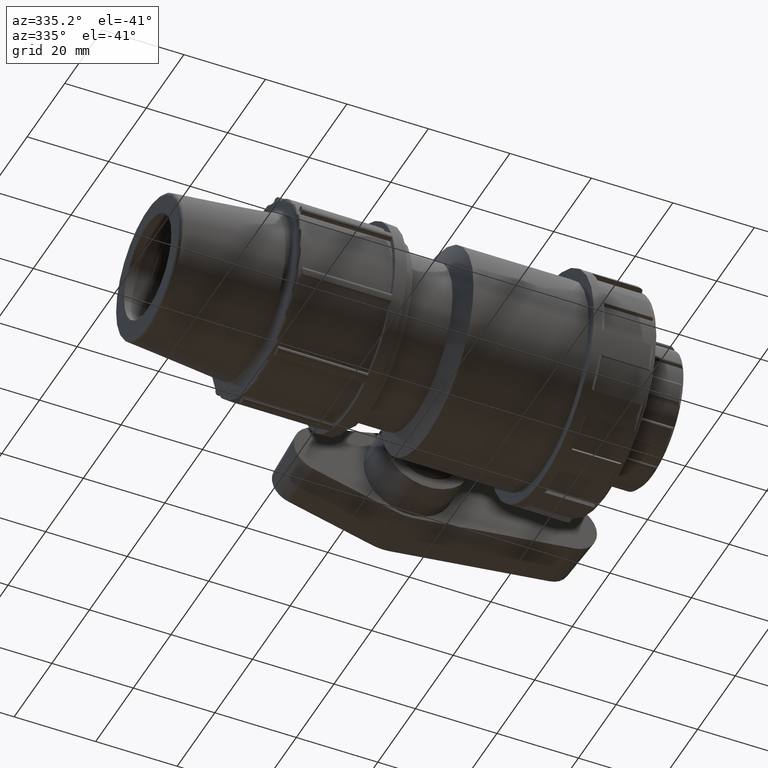
[diagram: clean part render]
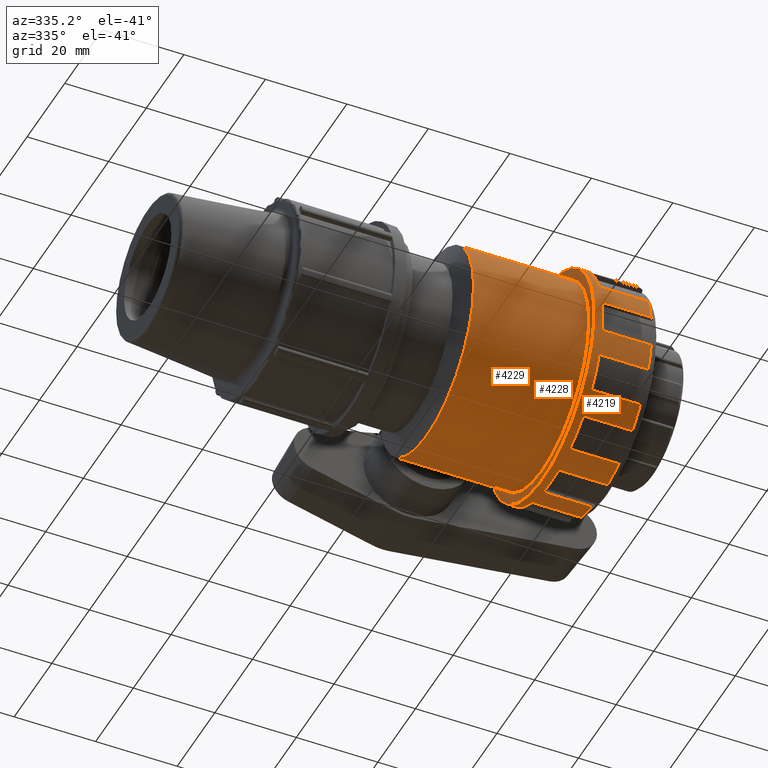
[diagram: same view with one multi-face feature highlighted, each face labeled with its STEP entity id]
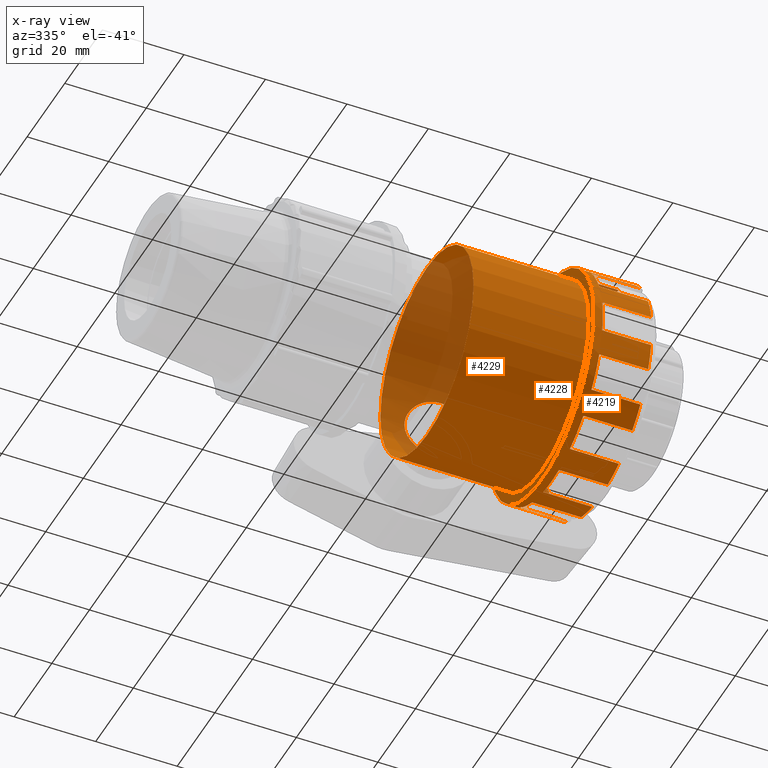
[diagram: x-ray of the same camera — body ghosted, the whole feature saturated]
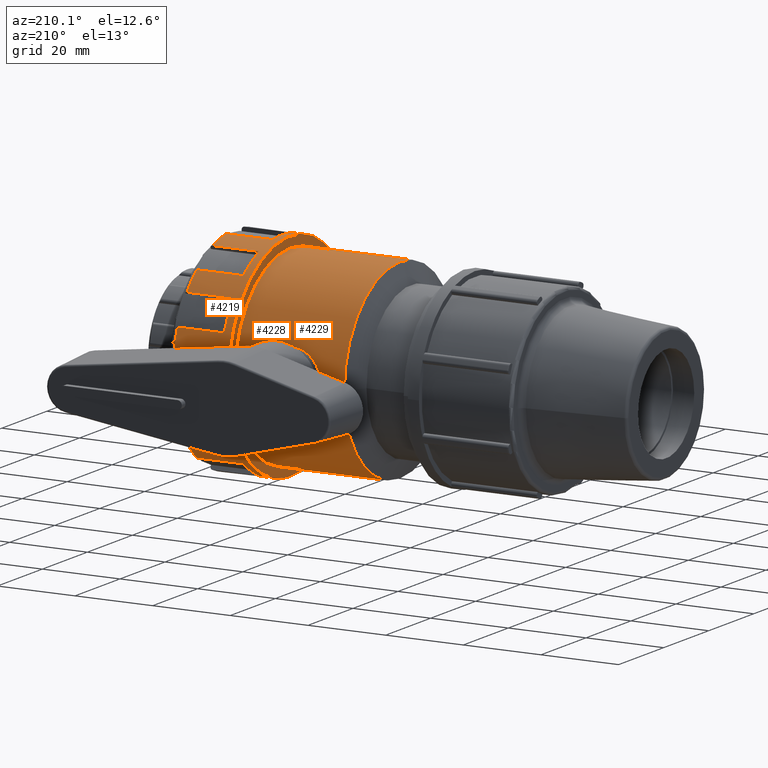
[diagram: same view with one multi-face feature highlighted, each face labeled with its STEP entity id]
A machine part, auxiliary view. The highlighted faces form ONE feature: a stepped (counterbored) hole: 2 coaxial cylindrical walls of radii 24.75 -> 27.5 mm joined by 1 annular planar shoulder face(s). The faces share edges in the B-rep.
The next image is the same camera in x-ray: the body ghosted and the whole hole feature saturated, so the bore chain is visible through the body.
A second angle (auxiliary view) of the same feature is appended — it is thin or edge-on in the first view.
Their STEP definitions:
[1] entity #4219 (Cylinder):
#90=FACE_BOUND('',#832,.T.);
#567=FACE_OUTER_BOUND('',#831,.T.);
#831=EDGE_LOOP('',(#3730,#3731,#3732,#3733,#3734,#3735,#3736,#3737,#3738,
#3739,#3740,#3741,#3742,#3743,#3744,#3745,#3746,#3747,#3748,#3749,#3750,
#3751,#3752,#3753,#3754,#3755,#3756,#3757,#3758,#3759,#3760,#3761,#3762,
#3763,#3764,#3765,#3766,#3767,#3768,#3769,#3770,#3771,#3772,#3773,#3774,
#3775,#3776,#3777));
#832=EDGE_LOOP('',(#3778));
#1042=LINE('',#8066,#1286);
#1043=LINE('',#8080,#1287);
#1048=LINE('',#8100,#1292);
#1049=LINE('',#8114,#1293);
#1054=LINE('',#8134,#1298);
#1055=LINE('',#8148,#1299);
#1060=LINE('',#8168,#1304);
#1061=LINE('',#8182,#1305);
#1066=LINE('',#8202,#1310);
#1067=LINE('',#8216,#1311);
#1072=LINE('',#8236,#1316);
#1073=LINE('',#8250,#1317);
#1078=LINE('',#8270,#1322);
#1079=LINE('',#8284,#1323);
#1084=LINE('',#8304,#1328);
#1085=LINE('',#8318,#1329);
#1090=LINE('',#8338,#1334);
#1091=LINE('',#8352,#1335);
#1096=LINE('',#8372,#1340);
#1097=LINE('',#8386,#1341);
#1102=LINE('',#8406,#1346);
#1103=LINE('',#8420,#1347);
#1108=LINE('',#8514,#1352);
#1109=LINE('',#8517,#1353);
#1286=VECTOR('',#5672,12.);
#1287=VECTOR('',#5675,12.);
#1292=VECTOR('',#5682,12.);
#1293=VECTOR('',#5685,12.);
#1298=VECTOR('',#5692,12.);
#1299=VECTOR('',#5695,12.);
#1304=VECTOR('',#5702,12.);
#1305=VECTOR('',#5705,12.);
#1310=VECTOR('',#5712,12.);
#1311=VECTOR('',#5715,12.);
#1316=VECTOR('',#5722,12.);
#1317=VECTOR('',#5725,12.);
#1322=VECTOR('',#5732,12.);
#1323=VECTOR('',#5735,12.);
#1328=VECTOR('',#5742,12.);
#1329=VECTOR('',#5745,12.);
#1334=VECTOR('',#5752,12.);
#1335=VECTOR('',#5755,12.);
#1340=VECTOR('',#5762,12.);
#1341=VECTOR('',#5765,12.);
#1346=VECTOR('',#5772,12.);
#1347=VECTOR('',#5775,12.);
#1352=VECTOR('',#5902,12.);
#1353=VECTOR('',#5905,12.);
#1539=CIRCLE('',#4567,27.5);
#1542=CIRCLE('',#4572,27.5);
#1545=CIRCLE('',#4577,27.5);
#1548=CIRCLE('',#4582,27.5);
#1551=CIRCLE('',#4587,27.5);
#1554=CIRCLE('',#4592,27.5);
#1557=CIRCLE('',#4597,27.5);
#1560=CIRCLE('',#4602,27.5);
#1563=CIRCLE('',#4607,27.5);
#1566=CIRCLE('',#4612,27.5);
#1569=CIRCLE('',#4617,27.5);
#1595=CIRCLE('',#4679,27.5);
#1596=CIRCLE('',#4681,27.5);
#1597=CIRCLE('',#4683,27.5);
#1598=CIRCLE('',#4685,27.5);
#1599=CIRCLE('',#4687,27.5);
#1600=CIRCLE('',#4689,27.5);
#1601=CIRCLE('',#4691,27.5);
#1602=CIRCLE('',#4693,27.5);
#1603=CIRCLE('',#4695,27.5);
#1604=CIRCLE('',#4697,27.5);
#1605=CIRCLE('',#4699,27.5);
#1606=CIRCLE('',#4701,27.5);
#1607=CIRCLE('',#4703,27.5);
#1608=CIRCLE('',#4704,27.5);
#1879=VERTEX_POINT('',#7688);
#1882=VERTEX_POINT('',#7702);
#1885=VERTEX_POINT('',#7721);
#1888=VERTEX_POINT('',#7735);
#1891=VERTEX_POINT('',#7754);
#1894=VERTEX_POINT('',#7768);
#1897=VERTEX_POINT('',#7787);
#1900=VERTEX_POINT('',#7801);
#1903=VERTEX_POINT('',#7820);
#1906=VERTEX_POINT('',#7834);
#1909=VERTEX_POINT('',#7853);
#1912=VERTEX_POINT('',#7867);
#1915=VERTEX_POINT('',#7886);
#1918=VERTEX_POINT('',#7900);
#1921=VERTEX_POINT('',#7919);
#1924=VERTEX_POINT('',#7933);
#1927=VERTEX_POINT('',#7952);
#1930=VERTEX_POINT('',#7966);
#1933=VERTEX_POINT('',#7985);
#1936=VERTEX_POINT('',#7999);
#1939=VERTEX_POINT('',#8018);
#1942=VERTEX_POINT('',#8032);
#1946=VERTEX_POINT('',#8052);
#1948=VERTEX_POINT('',#8068);
#1952=VERTEX_POINT('',#8086);
#1954=VERTEX_POINT('',#8102);
#1958=VERTEX_POINT('',#8120);
#1960=VERTEX_POINT('',#8136);
#1964=VERTEX_POINT('',#8154);
#1966=VERTEX_POINT('',#8170);
#1970=VERTEX_POINT('',#8188);
#1972=VERTEX_POINT('',#8204);
#1976=VERTEX_POINT('',#8222);
#1978=VERTEX_POINT('',#8238);
#1982=VERTEX_POINT('',#8256);
#1984=VERTEX_POINT('',#8272);
#1988=VERTEX_POINT('',#8290);
#1990=VERTEX_POINT('',#8306);
#1994=VERTEX_POINT('',#8324);
#1996=VERTEX_POINT('',#8340);
#2000=VERTEX_POINT('',#8358);
#2002=VERTEX_POINT('',#8374);
#2006=VERTEX_POINT('',#8392);
#2008=VERTEX_POINT('',#8408);
#2015=VERTEX_POINT('',#8467);
#2016=VERTEX_POINT('',#8498);
#2017=VERTEX_POINT('',#8513);
#2018=VERTEX_POINT('',#8515);
#2019=VERTEX_POINT('',#8518);
#2437=EDGE_CURVE('',#1882,#1879,#1539,.T.);
#2444=EDGE_CURVE('',#1888,#1885,#1542,.T.);
#2451=EDGE_CURVE('',#1894,#1891,#1545,.T.);
#2458=EDGE_CURVE('',#1900,#1897,#1548,.T.);
#2465=EDGE_CURVE('',#1906,#1903,#1551,.T.);
#2472=EDGE_CURVE('',#1912,#1909,#1554,.T.);
#2479=EDGE_CURVE('',#1918,#1915,#1557,.T.);
#2486=EDGE_CURVE('',#1924,#1921,#1560,.T.);
#2493=EDGE_CURVE('',#1930,#1927,#1563,.T.);
#2500=EDGE_CURVE('',#1936,#1933,#1566,.T.);
#2507=EDGE_CURVE('',#1942,#1939,#1569,.T.);
#2514=EDGE_CURVE('',#1946,#1879,#1042,.T.);
#2516=EDGE_CURVE('',#1882,#1948,#1043,.T.);
#2522=EDGE_CURVE('',#1952,#1885,#1048,.T.);
#2524=EDGE_CURVE('',#1888,#1954,#1049,.T.);
#2530=EDGE_CURVE('',#1958,#1891,#1054,.T.);
#2532=EDGE_CURVE('',#1894,#1960,#1055,.T.);
#2538=EDGE_CURVE('',#1964,#1897,#1060,.T.);
#2540=EDGE_CURVE('',#1900,#1966,#1061,.T.);
#2546=EDGE_CURVE('',#1970,#1903,#1066,.T.);
#2548=EDGE_CURVE('',#1906,#1972,#1067,.T.);
#2554=EDGE_CURVE('',#1976,#1909,#1072,.T.);
#2556=EDGE_CURVE('',#1912,#1978,#1073,.T.);
#2562=EDGE_CURVE('',#1982,#1915,#1078,.T.);
#2564=EDGE_CURVE('',#1918,#1984,#1079,.T.);
#2570=EDGE_CURVE('',#1988,#1921,#1084,.T.);
#2572=EDGE_CURVE('',#1924,#1990,#1085,.T.);
#2578=EDGE_CURVE('',#1994,#1927,#1090,.T.);
#2580=EDGE_CURVE('',#1930,#1996,#1091,.T.);
#2586=EDGE_CURVE('',#2000,#1933,#1096,.T.);
#2588=EDGE_CURVE('',#1936,#2002,#1097,.T.);
#2594=EDGE_CURVE('',#2006,#1939,#1102,.T.);
#2596=EDGE_CURVE('',#1942,#2008,#1103,.T.);
#2625=EDGE_CURVE('',#2006,#2015,#1595,.T.);
#2627=EDGE_CURVE('',#2000,#2008,#1596,.T.);
#2628=EDGE_CURVE('',#1994,#2002,#1597,.T.);
#2629=EDGE_CURVE('',#1988,#1996,#1598,.T.);
#2630=EDGE_CURVE('',#1982,#1990,#1599,.T.);
#2631=EDGE_CURVE('',#1976,#1984,#1600,.T.);
#2632=EDGE_CURVE('',#1970,#1978,#1601,.T.);
#2633=EDGE_CURVE('',#1964,#1972,#1602,.T.);
#2634=EDGE_CURVE('',#1958,#1966,#1603,.T.);
#2635=EDGE_CURVE('',#1952,#1960,#1604,.T.);
#2637=EDGE_CURVE('',#2016,#1948,#1605,.T.);
#2638=EDGE_CURVE('',#1946,#1954,#1606,.T.);
#2639=EDGE_CURVE('',#2016,#2017,#1108,.T.);
#2640=EDGE_CURVE('',#2018,#2017,#1607,.T.);
#2641=EDGE_CURVE('',#2018,#2015,#1109,.T.);
#2642=EDGE_CURVE('',#2019,#2019,#1608,.T.);
#3730=ORIENTED_EDGE('',*,*,#2516,.T.);
#3731=ORIENTED_EDGE('',*,*,#2637,.F.);
#3732=ORIENTED_EDGE('',*,*,#2639,.T.);
#3733=ORIENTED_EDGE('',*,*,#2640,.F.);
#3734=ORIENTED_EDGE('',*,*,#2641,.T.);
#3735=ORIENTED_EDGE('',*,*,#2625,.F.);
#3736=ORIENTED_EDGE('',*,*,#2594,.T.);
#3737=ORIENTED_EDGE('',*,*,#2507,.F.);
#3738=ORIENTED_EDGE('',*,*,#2596,.T.);
#3739=ORIENTED_EDGE('',*,*,#2627,.F.);
#3740=ORIENTED_EDGE('',*,*,#2586,.T.);
#3741=ORIENTED_EDGE('',*,*,#2500,.F.);
#3742=ORIENTED_EDGE('',*,*,#2588,.T.);
#3743=ORIENTED_EDGE('',*,*,#2628,.F.);
#3744=ORIENTED_EDGE('',*,*,#2578,.T.);
#3745=ORIENTED_EDGE('',*,*,#2493,.F.);
#3746=ORIENTED_EDGE('',*,*,#2580,.T.);
#3747=ORIENTED_EDGE('',*,*,#2629,.F.);
#3748=ORIENTED_EDGE('',*,*,#2570,.T.);
#3749=ORIENTED_EDGE('',*,*,#2486,.F.);
#3750=ORIENTED_EDGE('',*,*,#2572,.T.);
#3751=ORIENTED_EDGE('',*,*,#2630,.F.);
#3752=ORIENTED_EDGE('',*,*,#2562,.T.);
#3753=ORIENTED_EDGE('',*,*,#2479,.F.);
#3754=ORIENTED_EDGE('',*,*,#2564,.T.);
#3755=ORIENTED_EDGE('',*,*,#2631,.F.);
#3756=ORIENTED_EDGE('',*,*,#2554,.T.);
#3757=ORIENTED_EDGE('',*,*,#2472,.F.);
#3758=ORIENTED_EDGE('',*,*,#2556,.T.);
#3759=ORIENTED_EDGE('',*,*,#2632,.F.);
#3760=ORIENTED_EDGE('',*,*,#2546,.T.);
#3761=ORIENTED_EDGE('',*,*,#2465,.F.);
#3762=ORIENTED_EDGE('',*,*,#2548,.T.);
#3763=ORIENTED_EDGE('',*,*,#2633,.F.);
#3764=ORIENTED_EDGE('',*,*,#2538,.T.);
#3765=ORIENTED_EDGE('',*,*,#2458,.F.);
#3766=ORIENTED_EDGE('',*,*,#2540,.T.);
#3767=ORIENTED_EDGE('',*,*,#2634,.F.);
#3768=ORIENTED_EDGE('',*,*,#2530,.T.);
#3769=ORIENTED_EDGE('',*,*,#2451,.F.);
#3770=ORIENTED_EDGE('',*,*,#2532,.T.);
#3771=ORIENTED_EDGE('',*,*,#2635,.F.);
#3772=ORIENTED_EDGE('',*,*,#2522,.T.);
#3773=ORIENTED_EDGE('',*,*,#2444,.F.);
#3774=ORIENTED_EDGE('',*,*,#2524,.T.);
#3775=ORIENTED_EDGE('',*,*,#2638,.F.);
#3776=ORIENTED_EDGE('',*,*,#2514,.T.);
#3777=ORIENTED_EDGE('',*,*,#2437,.F.);
#3778=ORIENTED_EDGE('',*,*,#2642,.F.);
#3985=CYLINDRICAL_SURFACE('',#4702,27.5);
#4219=ADVANCED_FACE('',(#567,#90),#3985,.T.);
#4567=AXIS2_PLACEMENT_3D('',#7713,#5540,#5541);
#4572=AXIS2_PLACEMENT_3D('',#7746,#5552,#5553);
#4577=AXIS2_PLACEMENT_3D('',#7779,#5564,#5565);
#4582=AXIS2_PLACEMENT_3D('',#7812,#5576,#5577);
#4587=AXIS2_PLACEMENT_3D('',#7845,#5588,#5589);
#4592=AXIS2_PLACEMENT_3D('',#7878,#5600,#5601);
#4597=AXIS2_PLACEMENT_3D('',#7911,#5612,#5613);
#4602=AXIS2_PLACEMENT_3D('',#7944,#5624,#5625);
#4607=AXIS2_PLACEMENT_3D('',#7977,#5636,#5637);
#4612=AXIS2_PLACEMENT_3D('',#8010,#5648,#5649);
#4617=AXIS2_PLACEMENT_3D('',#8043,#5660,#5661);
#4679=AXIS2_PLACEMENT_3D('',#8468,#5854,#5855);
#4681=AXIS2_PLACEMENT_3D('',#8480,#5858,#5859);
#4683=AXIS2_PLACEMENT_3D('',#8482,#5862,#5863);
#4685=AXIS2_PLACEMENT_3D('',#8484,#5866,#5867);
#4687=AXIS2_PLACEMENT_3D('',#8486,#5870,#5871);
#4689=AXIS2_PLACEMENT_3D('',#8488,#5874,#5875);
#4691=AXIS2_PLACEMENT_3D('',#8490,#5878,#5879);
#4693=AXIS2_PLACEMENT_3D('',#8492,#5882,#5883);
#4695=AXIS2_PLACEMENT_3D('',#8494,#5886,#5887);
#4697=AXIS2_PLACEMENT_3D('',#8496,#5890,#5891);
#4699=AXIS2_PLACEMENT_3D('',#8509,#5894,#5895);
#4701=AXIS2_PLACEMENT_3D('',#8511,#5898,#5899);
#4702=AXIS2_PLACEMENT_3D('',#8512,#5900,#5901);
#4703=AXIS2_PLACEMENT_3D('',#8516,#5903,#5904);
#4704=AXIS2_PLACEMENT_3D('',#8519,#5906,#5907);
#5540=DIRECTION('center_axis',(1.,0.,0.));
#5541=DIRECTION('ref_axis',(0.,-0.866025403784438,-0.5));
#5552=DIRECTION('center_axis',(1.,0.,0.));
#5553=DIRECTION('ref_axis',(0.,-0.499999999999999,-0.866025403784439));
#5564=DIRECTION('center_axis',(1.,0.,0.));
#5565=DIRECTION('ref_axis',(0.,2.83276944882399E-16,-1.));
#5576=DIRECTION('center_axis',(1.,0.,0.));
#5577=DIRECTION('ref_axis',(0.,0.5,-0.866025403784438));
#5588=DIRECTION('center_axis',(1.,0.,0.));
#5589=DIRECTION('ref_axis',(0.,0.866025403784439,-0.5));
#5600=DIRECTION('center_axis',(1.,0.,0.));
#5601=DIRECTION('ref_axis',(0.,1.,1.66533453693773E-16));
#5612=DIRECTION('center_axis',(1.,0.,0.));
#5613=DIRECTION('ref_axis',(0.,0.866025403784438,0.5));
#5624=DIRECTION('center_axis',(1.,0.,0.));
#5625=DIRECTION('ref_axis',(0.,0.5,0.866025403784439));
#5636=DIRECTION('center_axis',(1.,0.,0.));
#5637=DIRECTION('ref_axis',(0.,6.12323399573677E-17,1.));
#5648=DIRECTION('center_axis',(1.,0.,0.));
#5649=DIRECTION('ref_axis',(0.,-0.5,0.866025403784439));
#5660=DIRECTION('center_axis',(1.,0.,0.));
#5661=DIRECTION('ref_axis',(0.,-0.866025403784439,0.5));
#5672=DIRECTION('',(-1.,0.,0.));
#5675=DIRECTION('',(1.,0.,0.));
#5682=DIRECTION('',(-1.,0.,0.));
#5685=DIRECTION('',(1.,0.,0.));
#5692=DIRECTION('',(-1.,0.,0.));
#5695=DIRECTION('',(1.,0.,0.));
#5702=DIRECTION('',(-1.,0.,0.));
#5705=DIRECTION('',(1.,0.,0.));
#5712=DIRECTION('',(-1.,0.,0.));
#5715=DIRECTION('',(1.,0.,0.));
#5722=DIRECTION('',(-1.,0.,0.));
#5725=DIRECTION('',(1.,0.,0.));
#5732=DIRECTION('',(-1.,0.,0.));
#5735=DIRECTION('',(1.,0.,0.));
#5742=DIRECTION('',(-1.,0.,0.));
#5745=DIRECTION('',(1.,0.,0.));
#5752=DIRECTION('',(-1.,0.,0.));
#5755=DIRECTION('',(1.,0.,0.));
#5762=DIRECTION('',(-1.,0.,0.));
#5765=DIRECTION('',(1.,0.,0.));
#5772=DIRECTION('',(-1.,0.,0.));
#5775=DIRECTION('',(1.,0.,0.));
#5854=DIRECTION('center_axis',(1.,0.,0.));
#5855=DIRECTION('ref_axis',(0.,-1.,-1.83697019872103E-16));
#5858=DIRECTION('center_axis',(1.,0.,0.));
#5859=DIRECTION('ref_axis',(0.,-1.,-1.83697019872103E-16));
#5862=DIRECTION('center_axis',(1.,0.,0.));
#5863=DIRECTION('ref_axis',(0.,-1.,-1.83697019872103E-16));
#5866=DIRECTION('center_axis',(1.,0.,0.));
#5867=DIRECTION('ref_axis',(0.,-1.,-1.83697019872103E-16));
#5870=DIRECTION('center_axis',(1.,0.,0.));
#5871=DIRECTION('ref_axis',(0.,-1.,-1.83697019872103E-16));
#5874=DIRECTION('center_axis',(1.,0.,0.));
#5875=DIRECTION('ref_axis',(0.,-1.,-1.83697019872103E-16));
#5878=DIRECTION('center_axis',(1.,0.,0.));
#5879=DIRECTION('ref_axis',(0.,-1.,-1.83697019872103E-16));
#5882=DIRECTION('center_axis',(1.,0.,0.));
#5883=DIRECTION('ref_axis',(0.,-1.,-1.83697019872103E-16));
#5886=DIRECTION('center_axis',(1.,0.,0.));
#5887=DIRECTION('ref_axis',(0.,-1.,-1.83697019872103E-16));
#5890=DIRECTION('center_axis',(1.,0.,0.));
#5891=DIRECTION('ref_axis',(0.,-1.,-1.83697019872103E-16));
#5894=DIRECTION('center_axis',(1.,0.,0.));
#5895=DIRECTION('ref_axis',(0.,-1.,-1.83697019872103E-16));
#5898=DIRECTION('center_axis',(1.,0.,0.));
#5899=DIRECTION('ref_axis',(0.,-1.,-1.83697019872103E-16));
#5900=DIRECTION('center_axis',(-1.,0.,0.));
#5901=DIRECTION('ref_axis',(0.,1.,0.));
#5902=DIRECTION('',(-1.,0.,0.));
#5903=DIRECTION('center_axis',(1.,0.,0.));
#5904=DIRECTION('ref_axis',(0.,-1.,-1.22464679914735E-16));
#5905=DIRECTION('',(1.,0.,0.));
#5906=DIRECTION('center_axis',(-1.,0.,0.));
#5907=DIRECTION('ref_axis',(0.,0.,1.));
#7688=CARTESIAN_POINT('',(16.3098233333333,-21.4837477106226,-17.1667872447444));
#7702=CARTESIAN_POINT('',(16.3098233333333,-25.6087477106226,-10.0220776635228));
#7713=CARTESIAN_POINT('Origin',(16.3098233333333,0.,0.));
#7721=CARTESIAN_POINT('',(16.3098233333333,-10.0220776635227,-25.6087477106226));
#7735=CARTESIAN_POINT('',(16.3098233333333,-17.1667872447444,-21.4837477106226));
#7746=CARTESIAN_POINT('Origin',(16.3098233333333,0.,0.));
#7754=CARTESIAN_POINT('',(16.3098233333333,4.12500000000001,-27.1888649082671));
#7768=CARTESIAN_POINT('',(16.3098233333333,-4.12499999999999,-27.1888649082671));
#7779=CARTESIAN_POINT('Origin',(16.3098233333333,0.,0.));
#7787=CARTESIAN_POINT('',(16.3098233333333,17.1667872447444,-21.4837477106226));
#7801=CARTESIAN_POINT('',(16.3098233333333,10.0220776635228,-25.6087477106226));
#7812=CARTESIAN_POINT('Origin',(16.3098233333333,0.,0.));
#7820=CARTESIAN_POINT('',(16.3098233333333,25.6087477106226,-10.0220776635227));
#7834=CARTESIAN_POINT('',(16.3098233333333,21.4837477106226,-17.1667872447444));
#7845=CARTESIAN_POINT('Origin',(16.3098233333333,0.,0.));
#7853=CARTESIAN_POINT('',(16.3098233333333,27.1888649082671,4.125));
#7867=CARTESIAN_POINT('',(16.3098233333333,27.1888649082671,-4.125));
#7878=CARTESIAN_POINT('Origin',(16.3098233333333,0.,0.));
#7886=CARTESIAN_POINT('',(16.3098233333333,21.4837477106226,17.1667872447444));
#7900=CARTESIAN_POINT('',(16.3098233333333,25.6087477106226,10.0220776635228));
#7911=CARTESIAN_POINT('Origin',(16.3098233333333,0.,0.));
#7919=CARTESIAN_POINT('',(16.3098233333333,10.0220776635228,25.6087477106226));
#7933=CARTESIAN_POINT('',(16.3098233333333,17.1667872447444,21.4837477106226));
#7944=CARTESIAN_POINT('Origin',(16.3098233333333,0.,0.));
#7952=CARTESIAN_POINT('',(16.3098233333333,-4.125,27.1888649082671));
#7966=CARTESIAN_POINT('',(16.3098233333333,4.125,27.1888649082671));
#7977=CARTESIAN_POINT('Origin',(16.3098233333333,0.,0.));
#7985=CARTESIAN_POINT('',(16.3098233333333,-17.1667872447444,21.4837477106226));
#7999=CARTESIAN_POINT('',(16.3098233333333,-10.0220776635228,25.6087477106226));
#8010=CARTESIAN_POINT('Origin',(16.3098233333333,0.,0.));
#8018=CARTESIAN_POINT('',(16.3098233333333,-25.6087477106226,10.0220776635228));
#8032=CARTESIAN_POINT('',(16.3098233333333,-21.4837477106226,17.1667872447444));
#8043=CARTESIAN_POINT('Origin',(16.3098233333333,0.,0.));
#8052=CARTESIAN_POINT('',(28.3098233333333,-21.4837477106226,-17.1667872447444));
#8066=CARTESIAN_POINT('',(21.5833333333333,-21.4837477106226,-17.1667872447444));
#8068=CARTESIAN_POINT('',(28.3098233333333,-25.6087477106226,-10.0220776635228));
#8080=CARTESIAN_POINT('',(21.5833333333333,-25.6087477106226,-10.0220776635228));
#8086=CARTESIAN_POINT('',(28.3098233333333,-10.0220776635227,-25.6087477106226));
#8100=CARTESIAN_POINT('',(21.5833333333333,-10.0220776635227,-25.6087477106226));
#8102=CARTESIAN_POINT('',(28.3098233333333,-17.1667872447444,-21.4837477106226));
#8114=CARTESIAN_POINT('',(21.5833333333333,-17.1667872447444,-21.4837477106226));
#8120=CARTESIAN_POINT('',(28.3098233333333,4.12500000000001,-27.1888649082671));
#8134=CARTESIAN_POINT('',(21.5833333333333,4.12500000000001,-27.1888649082671));
#8136=CARTESIAN_POINT('',(28.3098233333333,-4.12499999999999,-27.1888649082671));
#8148=CARTESIAN_POINT('',(21.5833333333333,-4.12499999999999,-27.1888649082671));
#8154=CARTESIAN_POINT('',(28.3098233333333,17.1667872447444,-21.4837477106226));
#8168=CARTESIAN_POINT('',(21.5833333333333,17.1667872447444,-21.4837477106226));
#8170=CARTESIAN_POINT('',(28.3098233333333,10.0220776635228,-25.6087477106226));
#8182=CARTESIAN_POINT('',(21.5833333333333,10.0220776635228,-25.6087477106226));
#8188=CARTESIAN_POINT('',(28.3098233333333,25.6087477106226,-10.0220776635227));
#8202=CARTESIAN_POINT('',(21.5833333333333,25.6087477106226,-10.0220776635227));
#8204=CARTESIAN_POINT('',(28.3098233333333,21.4837477106226,-17.1667872447444));
#8216=CARTESIAN_POINT('',(21.5833333333333,21.4837477106226,-17.1667872447444));
#8222=CARTESIAN_POINT('',(28.3098233333333,27.1888649082671,4.125));
#8236=CARTESIAN_POINT('',(21.5833333333333,27.1888649082671,4.125));
#8238=CARTESIAN_POINT('',(28.3098233333333,27.1888649082671,-4.125));
#8250=CARTESIAN_POINT('',(21.5833333333333,27.1888649082671,-4.125));
#8256=CARTESIAN_POINT('',(28.3098233333333,21.4837477106226,17.1667872447444));
#8270=CARTESIAN_POINT('',(21.5833333333333,21.4837477106226,17.1667872447444));
#8272=CARTESIAN_POINT('',(28.3098233333333,25.6087477106226,10.0220776635228));
#8284=CARTESIAN_POINT('',(21.5833333333333,25.6087477106226,10.0220776635228));
#8290=CARTESIAN_POINT('',(28.3098233333333,10.0220776635228,25.6087477106226));
#8304=CARTESIAN_POINT('',(21.5833333333333,10.0220776635228,25.6087477106226));
#8306=CARTESIAN_POINT('',(28.3098233333333,17.1667872447444,21.4837477106226));
#8318=CARTESIAN_POINT('',(21.5833333333333,17.1667872447444,21.4837477106226));
#8324=CARTESIAN_POINT('',(28.3098233333333,-4.125,27.1888649082671));
#8338=CARTESIAN_POINT('',(21.5833333333333,-4.125,27.1888649082671));
#8340=CARTESIAN_POINT('',(28.3098233333333,4.125,27.1888649082671));
#8352=CARTESIAN_POINT('',(21.5833333333333,4.125,27.1888649082671));
#8358=CARTESIAN_POINT('',(28.3098233333333,-17.1667872447444,21.4837477106226));
#8372=CARTESIAN_POINT('',(21.5833333333333,-17.1667872447444,21.4837477106226));
#8374=CARTESIAN_POINT('',(28.3098233333333,-10.0220776635228,25.6087477106226));
#8386=CARTESIAN_POINT('',(21.5833333333333,-10.0220776635228,25.6087477106226));
#8392=CARTESIAN_POINT('',(28.3098233333333,-25.6087477106226,10.0220776635228));
#8406=CARTESIAN_POINT('',(21.5833333333333,-25.6087477106226,10.0220776635228));
#8408=CARTESIAN_POINT('',(28.3098233333333,-21.4837477106226,17.1667872447444));
#8420=CARTESIAN_POINT('',(21.5833333333333,-21.4837477106226,17.1667872447444));
#8467=CARTESIAN_POINT('',(28.3098233333333,-27.1888649082671,4.125));
#8468=CARTESIAN_POINT('Origin',(28.3098233333333,0.,0.));
#8480=CARTESIAN_POINT('Origin',(28.3098233333333,0.,0.));
#8482=CARTESIAN_POINT('Origin',(28.3098233333333,0.,0.));
#8484=CARTESIAN_POINT('Origin',(28.3098233333333,0.,0.));
#8486=CARTESIAN_POINT('Origin',(28.3098233333333,0.,0.));
#8488=CARTESIAN_POINT('Origin',(28.3098233333333,0.,0.));
#8490=CARTESIAN_POINT('Origin',(28.3098233333333,0.,0.));
#8492=CARTESIAN_POINT('Origin',(28.3098233333333,0.,0.));
#8494=CARTESIAN_POINT('Origin',(28.3098233333333,0.,0.));
#8496=CARTESIAN_POINT('Origin',(28.3098233333333,0.,0.));
#8498=CARTESIAN_POINT('',(28.3098233333333,-27.1888649082671,-4.125));
#8509=CARTESIAN_POINT('Origin',(28.3098233333333,0.,0.));
#8511=CARTESIAN_POINT('Origin',(28.3098233333333,0.,0.));
#8512=CARTESIAN_POINT('Origin',(21.5833333333333,0.,0.));
#8513=CARTESIAN_POINT('',(16.3098233333333,-27.1888649082671,-4.125));
#8514=CARTESIAN_POINT('',(21.5833333333333,-27.1888649082671,-4.125));
#8515=CARTESIAN_POINT('',(16.3098233333333,-27.1888649082671,4.125));
#8516=CARTESIAN_POINT('Origin',(16.3098233333333,0.,0.));
#8517=CARTESIAN_POINT('',(21.5833333333333,-27.1888649082671,4.125));
#8518=CARTESIAN_POINT('',(14.1333333333333,27.5,0.));
#8519=CARTESIAN_POINT('Origin',(14.1333333333333,0.,0.));
[2] entity #4229 (Cylinder):
#96=FACE_BOUND('',#848,.T.);
#97=FACE_BOUND('',#849,.T.);
#275=B_SPLINE_CURVE_WITH_KNOTS('',3,(#7644,#7645,#7646,#7647,#7648,#7649,
#7650,#7651,#7652,#7653,#7654,#7655,#7656,#7657,#7658,#7659,#7660,#7661,
#7662,#7663,#7664,#7665,#7666,#7667,#7668,#7669,#7670,#7671,#7672,#7673,
#7674,#7675,#7676,#7677),.UNSPECIFIED.,.T.,.F.,(4,2,2,2,2,2,2,2,2,2,2,2,
2,2,2,2,4),(0.,0.313448999509541,0.626897999019083,0.940201620640778,1.25350524226247,
1.56680886388417,1.88011248550586,2.1935614850154,2.50701048452494,2.82045948403449,
3.13390848354403,3.44721210516572,3.76051572678742,4.07381934840911,4.38712297003081,
4.70057196954035,5.01402096904989),.UNSPECIFIED.);
#577=FACE_OUTER_BOUND('',#847,.T.);
#847=EDGE_LOOP('',(#3895));
#848=EDGE_LOOP('',(#3896));
#849=EDGE_LOOP('',(#3897));
#1614=CIRCLE('',#4719,24.75);
#1615=CIRCLE('',#4721,24.75);
#1875=VERTEX_POINT('',#7643);
#2027=VERTEX_POINT('',#8565);
#2028=VERTEX_POINT('',#8568);
#2430=EDGE_CURVE('',#1875,#1875,#275,.T.);
#2654=EDGE_CURVE('',#2027,#2027,#1614,.T.);
#2655=EDGE_CURVE('',#2028,#2028,#1615,.T.);
#3895=ORIENTED_EDGE('',*,*,#2655,.F.);
#3896=ORIENTED_EDGE('',*,*,#2430,.T.);
#3897=ORIENTED_EDGE('',*,*,#2654,.T.);
#3987=CYLINDRICAL_SURFACE('',#4720,24.75);
#4229=ADVANCED_FACE('',(#577,#96,#97),#3987,.T.);
#4719=AXIS2_PLACEMENT_3D('',#8566,#5940,#5941);
#4720=AXIS2_PLACEMENT_3D('',#8567,#5942,#5943);
#4721=AXIS2_PLACEMENT_3D('',#8569,#5944,#5945);
#5940=DIRECTION('center_axis',(-1.,0.,0.));
#5941=DIRECTION('ref_axis',(0.,0.,1.));
#5942=DIRECTION('center_axis',(-1.,0.,0.));
#5943=DIRECTION('ref_axis',(0.,1.,0.));
#5944=DIRECTION('center_axis',(-1.,0.,0.));
#5945=DIRECTION('ref_axis',(0.,0.,1.));
#7643=CARTESIAN_POINT('',(-4.16333634234434E-15,23.3345237791561,8.25));
#7644=CARTESIAN_POINT('Ctrl Pts',(-2.77555756156289E-16,23.3345237791561,
8.25));
#7645=CARTESIAN_POINT('Ctrl Pts',(-1.04482999836514,23.3345237791561,8.25));
#7646=CARTESIAN_POINT('Ctrl Pts',(-2.15326628107406,23.4120709586878,8.0395452989677));
#7647=CARTESIAN_POINT('Ctrl Pts',(-4.18318873465101,23.6851759052892,7.1952614879174));
#7648=CARTESIAN_POINT('Ctrl Pts',(-5.10545542958048,23.8760680625196,6.56180645999756));
#7649=CARTESIAN_POINT('Ctrl Pts',(-6.5614687316317,24.2292031587938,5.10579315794633));
#7650=CARTESIAN_POINT('Ctrl Pts',(-7.19518376046184,24.4153548812531,4.18339194864859));
#7651=CARTESIAN_POINT('Ctrl Pts',(-8.03966147162514,24.6774196303351,2.15297063207207));
#7652=CARTESIAN_POINT('Ctrl Pts',(-8.25,24.75,1.04434540540565));
#7653=CARTESIAN_POINT('Ctrl Pts',(-8.25,24.75,-1.04434540540565));
#7654=CARTESIAN_POINT('Ctrl Pts',(-8.03966147162514,24.6774196303351,-2.15297063207207));
#7655=CARTESIAN_POINT('Ctrl Pts',(-7.19518376046184,24.4153548812531,-4.18339194864859));
#7656=CARTESIAN_POINT('Ctrl Pts',(-6.56146873163171,24.2292031587938,-5.10579315794633));
#7657=CARTESIAN_POINT('Ctrl Pts',(-5.10545542958048,23.8760680625196,-6.56180645999756));
#7658=CARTESIAN_POINT('Ctrl Pts',(-4.18318873465101,23.6851759052892,-7.1952614879174));
#7659=CARTESIAN_POINT('Ctrl Pts',(-2.15326628107406,23.4120709586878,-8.0395452989677));
#7660=CARTESIAN_POINT('Ctrl Pts',(-1.04482999836514,23.3345237791561,-8.25));
#7661=CARTESIAN_POINT('Ctrl Pts',(1.04482999836514,23.3345237791561,-8.25));
#7662=CARTESIAN_POINT('Ctrl Pts',(2.15326628107406,23.4120709586878,-8.0395452989677));
#7663=CARTESIAN_POINT('Ctrl Pts',(4.18318873465101,23.6851759052892,-7.1952614879174));
#7664=CARTESIAN_POINT('Ctrl Pts',(5.10545542958048,23.8760680625196,-6.56180645999756));
#7665=CARTESIAN_POINT('Ctrl Pts',(6.5614687316317,24.2292031587938,-5.10579315794633));
#7666=CARTESIAN_POINT('Ctrl Pts',(7.19518376046184,24.4153548812531,-4.18339194864859));
#7667=CARTESIAN_POINT('Ctrl Pts',(8.03966147162514,24.6774196303351,-2.15297063207207));
#7668=CARTESIAN_POINT('Ctrl Pts',(8.25,24.75,-1.04434540540565));
#7669=CARTESIAN_POINT('Ctrl Pts',(8.25,24.75,1.04434540540565));
#7670=CARTESIAN_POINT('Ctrl Pts',(8.03966147162514,24.6774196303351,2.15297063207207));
#7671=CARTESIAN_POINT('Ctrl Pts',(7.19518376046184,24.4153548812531,4.18339194864859));
#7672=CARTESIAN_POINT('Ctrl Pts',(6.56146873163171,24.2292031587938,5.10579315794633));
#7673=CARTESIAN_POINT('Ctrl Pts',(5.10545542958048,23.8760680625196,6.56180645999756));
#7674=CARTESIAN_POINT('Ctrl Pts',(4.18318873465101,23.6851759052892,7.1952614879174));
#7675=CARTESIAN_POINT('Ctrl Pts',(2.15326628107406,23.4120709586878,8.0395452989677));
#7676=CARTESIAN_POINT('Ctrl Pts',(1.04482999836514,23.3345237791561,8.25));
#7677=CARTESIAN_POINT('Ctrl Pts',(-5.55111512312578E-16,23.3345237791561,
8.25));
#8565=CARTESIAN_POINT('',(14.1333333333333,24.75,0.));
#8566=CARTESIAN_POINT('Origin',(14.1333333333333,0.,0.));
#8567=CARTESIAN_POINT('Origin',(0.,0.,0.));
#8568=CARTESIAN_POINT('',(-14.1333333333333,24.75,0.));
#8569=CARTESIAN_POINT('Origin',(-14.1333333333333,0.,0.));
[3] entity #4228 (Plane):
#95=FACE_BOUND('',#846,.T.);
#203=PLANE('',#4718);
#576=FACE_OUTER_BOUND('',#845,.T.);
#845=EDGE_LOOP('',(#3893));
#846=EDGE_LOOP('',(#3894));
#1608=CIRCLE('',#4704,27.5);
#1614=CIRCLE('',#4719,24.75);
#2019=VERTEX_POINT('',#8518);
#2027=VERTEX_POINT('',#8565);
#2642=EDGE_CURVE('',#2019,#2019,#1608,.T.);
#2654=EDGE_CURVE('',#2027,#2027,#1614,.T.);
#3893=ORIENTED_EDGE('',*,*,#2642,.T.);
#3894=ORIENTED_EDGE('',*,*,#2654,.F.);
#4228=ADVANCED_FACE('',(#576,#95),#203,.T.);
#4704=AXIS2_PLACEMENT_3D('',#8519,#5906,#5907);
#4718=AXIS2_PLACEMENT_3D('',#8564,#5938,#5939);
#4719=AXIS2_PLACEMENT_3D('',#8566,#5940,#5941);
#5906=DIRECTION('center_axis',(-1.,0.,0.));
#5907=DIRECTION('ref_axis',(0.,0.,1.));
#5938=DIRECTION('center_axis',(-1.,0.,0.));
#5939=DIRECTION('ref_axis',(0.,0.,1.));
#5940=DIRECTION('center_axis',(-1.,0.,0.));
#5941=DIRECTION('ref_axis',(0.,0.,1.));
#8518=CARTESIAN_POINT('',(14.1333333333333,27.5,0.));
#8519=CARTESIAN_POINT('Origin',(14.1333333333333,0.,0.));
#8564=CARTESIAN_POINT('Origin',(14.1333333333333,24.75,0.));
#8565=CARTESIAN_POINT('',(14.1333333333333,24.75,0.));
#8566=CARTESIAN_POINT('Origin',(14.1333333333333,0.,0.));